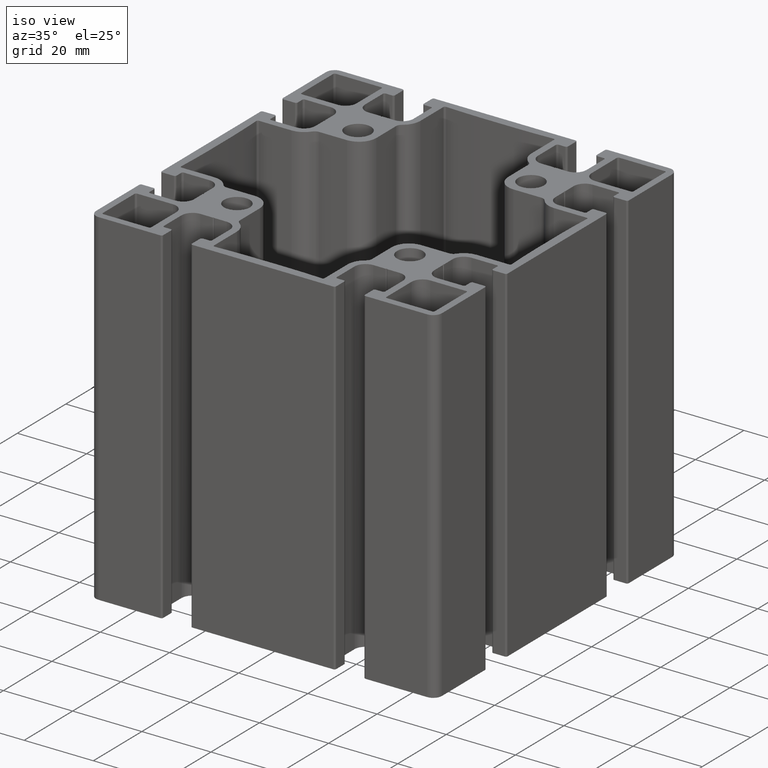
[diagram: clean part render]
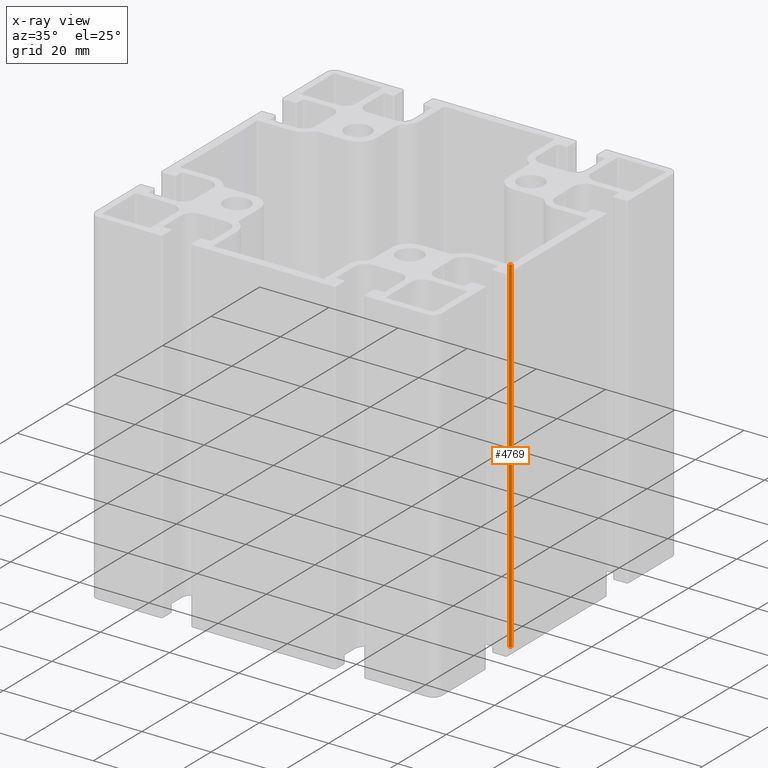
[diagram: x-ray — body ghosted, one internal face saturated and labeled with its STEP entity id]
A machine part, iso view, then the same camera in x-ray: the body is ghosted and one INTERNAL B-rep face — a face not visible from any outside direction — is saturated and labeled: STEP entity #4769.
In plain terms, the highlighted cylindrical surface (edge-blend (fillet) strip) has radius 0.5 mm, axis along (0, 0, 1).
Its self-contained STEP definition (entity closure, byte-faithful):
#53=CIRCLE('',#5038,0.499999999999964);
#54=CIRCLE('',#5039,0.499999999999964);
#293=CYLINDRICAL_SURFACE('',#5037,0.499999999999964);
#421=FACE_OUTER_BOUND('',#671,.T.);
#671=EDGE_LOOP('',(#3199,#3200,#3201,#3202));
#951=LINE('',#7071,#1443);
#952=LINE('',#7077,#1444);
#1443=VECTOR('',#5583,100.);
#1444=VECTOR('',#5590,100.);
#1939=VERTEX_POINT('',#7068);
#1940=VERTEX_POINT('',#7070);
#1941=VERTEX_POINT('',#7074);
#1942=VERTEX_POINT('',#7076);
#2446=EDGE_CURVE('',#1939,#1940,#951,.T.);
#2448=EDGE_CURVE('',#1941,#1939,#53,.T.);
#2449=EDGE_CURVE('',#1941,#1942,#952,.T.);
#2450=EDGE_CURVE('',#1940,#1942,#54,.T.);
#3199=ORIENTED_EDGE('',*,*,#2448,.F.);
#3200=ORIENTED_EDGE('',*,*,#2449,.T.);
#3201=ORIENTED_EDGE('',*,*,#2450,.F.);
#3202=ORIENTED_EDGE('',*,*,#2446,.F.);
#4769=ADVANCED_FACE('',(#421),#293,.F.);
#5037=AXIS2_PLACEMENT_3D('',#7073,#5586,#5587);
#5038=AXIS2_PLACEMENT_3D('',#7075,#5588,#5589);
#5039=AXIS2_PLACEMENT_3D('',#7078,#5591,#5592);
#5583=DIRECTION('',(0.,0.,1.));
#5586=DIRECTION('center_axis',(0.,0.,1.));
#5587=DIRECTION('ref_axis',(3.69482222595299E-12,-1.,0.));
#5588=DIRECTION('center_axis',(0.,0.,1.));
#5589=DIRECTION('ref_axis',(3.69482222595299E-12,-1.,0.));
#5590=DIRECTION('',(0.,0.,1.));
#5591=DIRECTION('center_axis',(0.,0.,-1.));
#5592=DIRECTION('ref_axis',(3.69482222595299E-12,-1.,0.));
#7068=CARTESIAN_POINT('',(47.7935583686385,-15.476519148268,0.));
#7070=CARTESIAN_POINT('',(47.7935583686385,-15.476519148268,100.));
#7071=CARTESIAN_POINT('',(47.7935583686385,-15.476519148268,0.));
#7073=CARTESIAN_POINT('Origin',(47.2941100233383,-15.4999999995492,0.));
#7074=CARTESIAN_POINT('',(47.2941100233402,-15.9999999995491,0.));
#7075=CARTESIAN_POINT('Origin',(47.2941100233383,-15.4999999995492,0.));
#7076=CARTESIAN_POINT('',(47.2941100233402,-15.9999999995491,100.));
#7077=CARTESIAN_POINT('',(47.2941100233402,-15.9999999995491,0.));
#7078=CARTESIAN_POINT('Origin',(47.2941100233383,-15.4999999995492,100.));